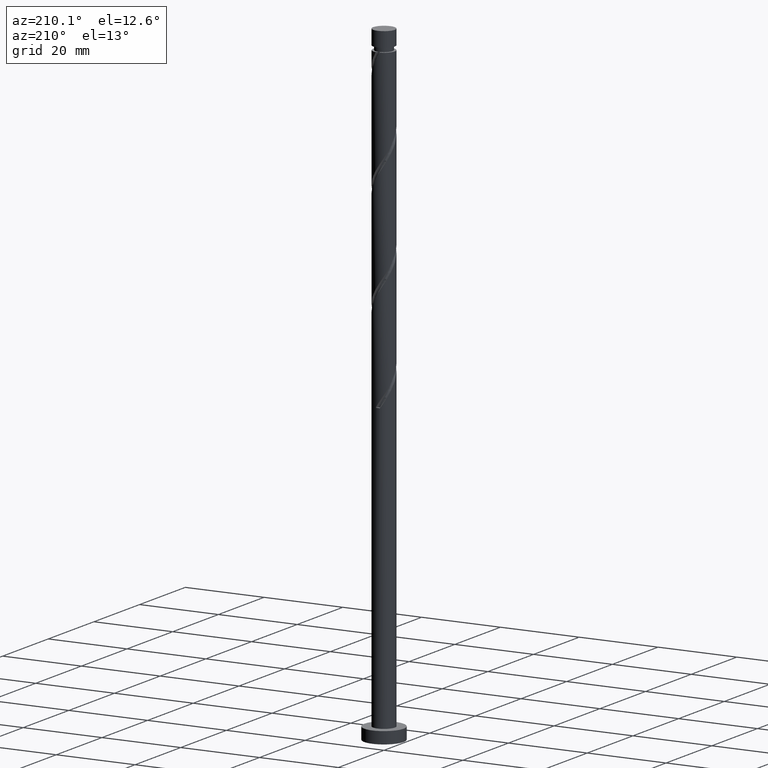
[diagram: clean part render]
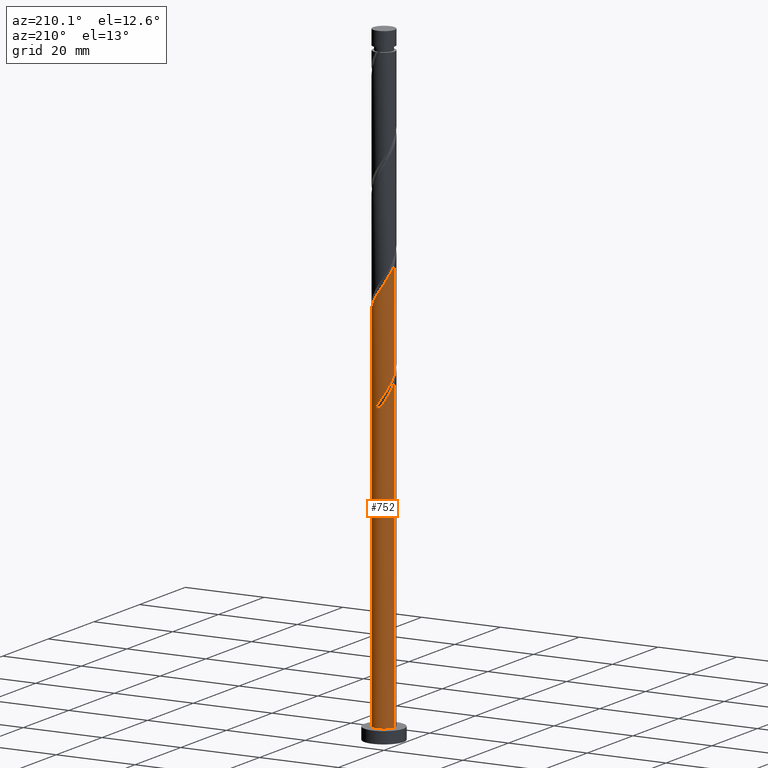
[diagram: same view with one face highlighted and labeled with its STEP entity id]
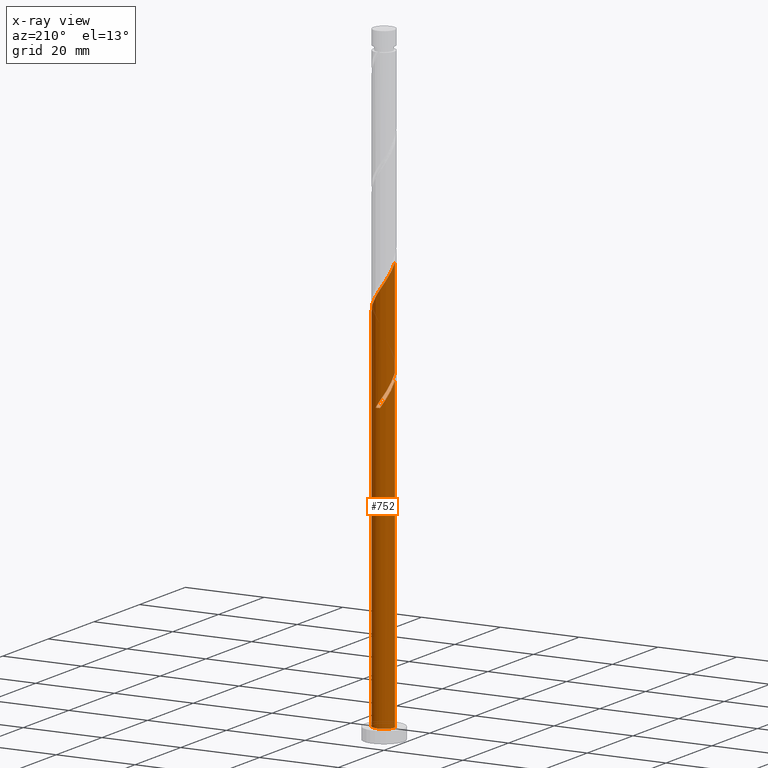
[diagram: x-ray of the same camera — body ghosted, the highlighted face saturated]
A machine part, auxiliary view. The second image highlights one B-rep face of the part: STEP entity #752.
The next image is the same camera in x-ray: the body ghosted, the highlighted face saturated — about 0% of this face is hidden behind the body in this view.
In plain terms, the highlighted cylindrical surface (edge-blend (fillet) strip) has radius 2.75 mm, axis along (-0, -0, -1).
Its self-contained STEP definition (entity closure, byte-faithful):
#4 = CARTESIAN_POINT ( 'NONE',  ( -2.750000000000000000, 0.000000000000000000, 3.000000000000000000 ) ) ;
#58 = CARTESIAN_POINT ( 'NONE',  ( -2.750000000000003997, 0.3149545503090887544, 80.48169176894057841 ) ) ;
#68 =( BOUNDED_CURVE ( )  B_SPLINE_CURVE ( 2, ( #449, #307, #1586, #829, #1325, #1463, #926, #317, #1609, #58, #69 ),
 .UNSPECIFIED., .F., .T. ) 
 B_SPLINE_CURVE_WITH_KNOTS ( ( 3, 2, 2, 2, 2, 3 ),
 ( 0.000000000000000000, 0.01136363636363635354, 0.02272727272727270709, 0.03409090909090906063, 0.04545454545454541417, 0.05452521624175129394 ),
 .UNSPECIFIED. ) 
 CURVE ( )  GEOMETRIC_REPRESENTATION_ITEM ( )  RATIONAL_B_SPLINE_CURVE ( ( 0.9090909090909256030, 0.8998376744372277303, 0.9090909090909256030, 0.8998376744372277303, 0.9090909090909256030, 0.8998376744372277303, 0.9090909090909256030, 0.8998376744372277303, 0.9090909090909256030, 0.9017048011080052161, 0.9061101570135658978 ) ) 
 REPRESENTATION_ITEM ( '' )  );
#69 = CARTESIAN_POINT ( 'NONE',  ( -2.750000000000003553, -1.847167356881795820E-15, 80.96765172191189208 ) ) ;
#74 = FACE_OUTER_BOUND ( 'NONE', #306, .T. ) ;
#115 = CARTESIAN_POINT ( 'NONE',  ( -2.456662652402862523, 1.297552352829637101, 80.60498498909153398 ) ) ;
#124 = VERTEX_POINT ( 'NONE', #334 ) ;
#134 = ORIENTED_EDGE ( 'NONE', *, *, #1218, .T. ) ;
#140 = CARTESIAN_POINT ( 'NONE',  ( 0.5472430904086420522, 2.695000000000000284, 75.15043953454609493 ) ) ;
#171 = CARTESIAN_POINT ( 'NONE',  ( 0.2341933405814793923, 2.740009758965706421, 100.6049849890915624 ) ) ;
#179 = CARTESIAN_POINT ( 'NONE',  ( -2.395113114716218128, 1.351270945337905927, 105.4534698375763924 ) ) ;
#187 = CARTESIAN_POINT ( 'NONE',  ( -0.9347255927250954777, 2.616318322060513069, 102.4231668072734038 ) ) ;
#192 = DIRECTION ( 'NONE',  ( -1.000000000000000000, 0.000000000000000000, 0.000000000000000000 ) ) ;
#194 = CARTESIAN_POINT ( 'NONE',  ( -0.1597605880921877108, 2.773681677939495493, 101.2110455951521715 ) ) ;
#202 = CARTESIAN_POINT ( 'NONE',  ( 2.750000000000004441, 1.705077560198580878E-15, 94.30098505524520647 ) ) ;
#256 = CARTESIAN_POINT ( 'NONE',  ( -2.745449597776791872, 0.1581344556611559704, 82.42316680727336120 ) ) ;
#300 = CARTESIAN_POINT ( 'NONE',  ( -2.200829683470559850, 1.695636222896790279, 104.8474092315158259 ) ) ;
#306 = EDGE_LOOP ( 'NONE', ( #536, #563, #134, #1450, #1313, #1407, #1003, #462 ) ) ;
#307 = CARTESIAN_POINT ( 'NONE',  ( -0.9347255927250954777, 2.616318322060513069, 75.75650014060671822 ) ) ;
#317 = CARTESIAN_POINT ( 'NONE',  ( -2.589396545961877738, 1.006905667779021574, 79.39286377697033004 ) ) ;
#320 = DIRECTION ( 'NONE',  ( -0.000000000000000000, -0.000000000000000000, -1.000000000000000000 ) ) ;
#325 = CARTESIAN_POINT ( 'NONE',  ( 0.9966568199191135902, 2.563040222725492701, 99.39286377697033004 ) ) ;
#332 = CARTESIAN_POINT ( 'NONE',  ( 2.745449597776796313, 0.1581344556611551377, 94.54437892848548586 ) ) ;
#334 = CARTESIAN_POINT ( 'NONE',  ( -2.750000000000000000, 2.587529981704879547E-15, 82.66656068051365480 ) ) ;
#335 = DIRECTION ( 'NONE',  ( -0.000000000000000000, -0.000000000000000000, -1.000000000000000000 ) ) ;
#343 = EDGE_CURVE ( 'NONE', #124, #1578, #1229, .T. ) ;
#350 = CARTESIAN_POINT ( 'NONE',  ( -2.750000000000000000, 0.000000000000000000, 160.0000000000000000 ) ) ;
#360 = AXIS2_PLACEMENT_3D ( 'NONE', #1207, #956, #840 ) ;
#403 = CARTESIAN_POINT ( 'NONE',  ( -0.9966568199191122579, 2.563040222725488704, 77.57468195878850281 ) ) ;
#412 = VERTEX_POINT ( 'NONE', #1007 ) ;
#445 = CARTESIAN_POINT ( 'NONE',  ( 0.000000000000000000, 0.000000000000000000, 160.0000000000000000 ) ) ;
#449 = CARTESIAN_POINT ( 'NONE',  ( -0.5472430904086411640, 2.695000000000003837, 75.15043953454609493 ) ) ;
#454 = LINE ( 'NONE', #350, #583 ) ;
#456 = CARTESIAN_POINT ( 'NONE',  ( -1.917397186166560852, 1.971316319234581060, 104.2413486254551742 ) ) ;
#461 = CARTESIAN_POINT ( 'NONE',  ( -0.5472430904086411640, 2.695000000000003837, 75.15043953454609493 ) ) ;
#462 = ORIENTED_EDGE ( 'NONE', *, *, #1658, .F. ) ;
#465 = CARTESIAN_POINT ( 'NONE',  ( -2.750000000000003553, -1.847167356881795820E-15, 80.96765172191189208 ) ) ;
#502 = AXIS2_PLACEMENT_3D ( 'NONE', #1415, #723, #1587 ) ;
#512 = CARTESIAN_POINT ( 'NONE',  ( -0.2341933405814784763, 2.740009758965701980, 76.36256074666731308 ) ) ;
#536 = ORIENTED_EDGE ( 'NONE', *, *, #1635, .F. ) ;
#540 = CARTESIAN_POINT ( 'NONE',  ( -2.589687973961434686, 0.9252114339541620547, 81.21104559515214305 ) ) ;
#543 = EDGE_CURVE ( 'NONE', #412, #1425, #1075, .T. ) ;
#563 = ORIENTED_EDGE ( 'NONE', *, *, #543, .T. ) ;
#564 = CARTESIAN_POINT ( 'NONE',  ( 1.678377091053239401, 2.178428410627185396, 98.18074256484914031 ) ) ;
#572 = CARTESIAN_POINT ( 'NONE',  ( 0.5472430904086420522, 2.695000000000000284, 75.15043953454609493 ) ) ;
#580 = CARTESIAN_POINT ( 'NONE',  ( -2.750000000000005329, 0.3149545503090818710, 107.1483584356072640 ) ) ;
#583 = VECTOR ( 'NONE', #335, 1000.000000000000000 ) ;
#609 = VERTEX_POINT ( 'NONE', #461 ) ;
#621 = EDGE_CURVE ( 'NONE', #609, #1578, #1597, .T. ) ;
#639 = EDGE_CURVE ( 'NONE', #958, #1273, #454, .T. ) ;
#685 = DIRECTION ( 'NONE',  ( -0.000000000000000000, -0.000000000000000000, -1.000000000000000000 ) ) ;
#694 = CARTESIAN_POINT ( 'NONE',  ( -2.678791222997729093, 0.6217536357676994863, 106.6655910496975963 ) ) ;
#701 = CARTESIAN_POINT ( 'NONE',  ( 2.589687973961440015, 0.9252114339541627208, 95.75650014060671822 ) ) ;
#723 = DIRECTION ( 'NONE',  ( 0.000000000000000000, 0.000000000000000000, 1.000000000000000000 ) ) ;
#726 = VECTOR ( 'NONE', #1341, 1000.000000000000000 ) ;
#752 = ADVANCED_FACE ( 'NONE', ( #74 ), #1595, .T. ) ;
#758 = CARTESIAN_POINT ( 'NONE',  ( -0.6281472692551449688, 2.706337839991914240, 76.96862135272789374 ) ) ;
#766 = CARTESIAN_POINT ( 'NONE',  ( -2.722713295520007737, 0.5528705150786886735, 81.81710620121275213 ) ) ;
#799 = CARTESIAN_POINT ( 'NONE',  ( -2.750000000000003109, -1.847167356881795820E-15, 107.6343183885785351 ) ) ;
#816 = CARTESIAN_POINT ( 'NONE',  ( 1.991587811523398699, 1.937114215795303629, 97.57468195878853123 ) ) ;
#829 = CARTESIAN_POINT ( 'NONE',  ( -1.633964688862562964, 2.246996415572371841, 76.96862135272792216 ) ) ;
#840 = DIRECTION ( 'NONE',  ( -1.000000000000000000, 0.000000000000000000, 0.000000000000000000 ) ) ;
#921 = CARTESIAN_POINT ( 'NONE',  ( -1.633964688862562964, 2.246996415572371841, 103.6352880193946220 ) ) ;
#926 = CARTESIAN_POINT ( 'NONE',  ( -2.395113114716218128, 1.351270945337905927, 78.78680317090972096 ) ) ;
#956 = DIRECTION ( 'NONE',  ( 0.000000000000000000, -0.000000000000000000, -1.000000000000000000 ) ) ;
#958 = VERTEX_POINT ( 'NONE', #465 ) ;
#992 = AXIS2_PLACEMENT_3D ( 'NONE', #445, #320, #192 ) ;
#1000 = CARTESIAN_POINT ( 'NONE',  ( -2.224125231963128613, 1.617333284312469255, 79.99892438303095332 ) ) ;
#1003 = ORIENTED_EDGE ( 'NONE', *, *, #343, .F. ) ;
#1007 = CARTESIAN_POINT ( 'NONE',  ( 2.750000000000004441, 1.705077560198580878E-15, 94.30098505524520647 ) ) ;
#1013 = CARTESIAN_POINT ( 'NONE',  ( -1.365166370583079658, 2.419742605459063611, 78.18074256484915452 ) ) ;
#1049 = CARTESIAN_POINT ( 'NONE',  ( 2.722713295520012178, 0.5528705150786884515, 95.15043953454613757 ) ) ;
#1060 = CARTESIAN_POINT ( 'NONE',  ( -2.589396545961877738, 1.006905667779021574, 106.0595304436370441 ) ) ;
#1070 = CARTESIAN_POINT ( 'NONE',  ( -0.5472430904086412751, 2.695000000000004281, 101.8171062012127663 ) ) ;
#1075 = LINE ( 'NONE', #1601, #726 ) ;
#1076 = CARTESIAN_POINT ( 'NONE',  ( 1.365166370583081434, 2.419742605459066720, 98.78680317090974938 ) ) ;
#1082 = CARTESIAN_POINT ( 'NONE',  ( 0.6281472692551467452, 2.706337839991918237, 99.99892438303096753 ) ) ;
#1107 = CARTESIAN_POINT ( 'NONE',  ( -2.750000000000003553, -1.847167356881795820E-15, 107.6343183885785351 ) ) ;
#1127 = CARTESIAN_POINT ( 'NONE',  ( -1.991587811523394480, 1.937114215795302519, 79.39286377697033004 ) ) ;
#1144 = CARTESIAN_POINT ( 'NONE',  ( -2.750000000000000000, 2.587529981704879547E-15, 82.66656068051365480 ) ) ;
#1181 = CARTESIAN_POINT ( 'NONE',  ( 2.456662652402867408, 1.297552352829637323, 96.36256074666735572 ) ) ;
#1188 = CARTESIAN_POINT ( 'NONE',  ( 2.750000000000003109, 0.07913269794051239203, 94.42308305996341744 ) ) ;
#1194 = LINE ( 'NONE', #1579, #1600 ) ;
#1202 = CARTESIAN_POINT ( 'NONE',  ( -1.284345140793828666, 2.431657368816442233, 103.0292274133339987 ) ) ;
#1207 = CARTESIAN_POINT ( 'NONE',  ( 0.000000000000000000, 0.000000000000000000, 75.15043953454609493 ) ) ;
#1218 = EDGE_CURVE ( 'NONE', #1425, #1273, #1350, .T. ) ;
#1229 =( BOUNDED_CURVE ( )  B_SPLINE_CURVE ( 2, ( #1144, #1270, #256, #766, #540, #115, #1000, #1127, #1528, #1013, #403, #758, #512, #1284, #140 ),
 .UNSPECIFIED., .F., .T. ) 
 B_SPLINE_CURVE_WITH_KNOTS ( ( 3, 2, 2, 2, 2, 2, 2, 3 ),
 ( 0.9295252162417512176, 0.9318181818181817677, 0.9431818181818182323, 0.9545454545454545858, 0.9659090909090909394, 0.9772727272727272929, 0.9886363636363636465, 1.000000000000000000 ),
 .UNSPECIFIED. ) 
 CURVE ( )  GEOMETRIC_REPRESENTATION_ITEM ( )  RATIONAL_B_SPLINE_CURVE ( ( 0.9061101570135604577, 0.9072237824201425660, 0.9090909090909201629, 0.8998376744372224012, 0.9090909090909201629, 0.8998376744372224012, 0.9090909090909201629, 0.8998376744372224012, 0.9090909090909201629, 0.8998376744372224012, 0.9090909090909201629, 0.8998376744372224012, 0.9090909090909201629, 0.8998376744372224012, 0.9090909090909201629 ) ) 
 REPRESENTATION_ITEM ( '' )  );
#1270 = CARTESIAN_POINT ( 'NONE',  ( -2.750000000000000444, 0.07913269794050940831, 82.54446267579544383 ) ) ;
#1273 = VERTEX_POINT ( 'NONE', #4 ) ;
#1282 =( BOUNDED_CURVE ( )  B_SPLINE_CURVE ( 2, ( #202, #1188, #332, #1049, #701, #1181, #1572, #816, #564, #1076, #325, #1082, #171, #194, #1070, #187, #1202, #921, #456, #300, #179, #1060, #694, #580, #799 ),
 .UNSPECIFIED., .F., .T. ) 
 B_SPLINE_CURVE_WITH_KNOTS ( ( 3, 2, 2, 2, 2, 2, 2, 2, 2, 2, 2, 2, 3 ),
 ( 0.1795252162417513286, 0.1818181818181817677, 0.1931818181818182323, 0.2045454545454545858, 0.2159090909090909394, 0.2272727272727272929, 0.2386363636363636465, 0.2500000000000000000, 0.2613636363636363535, 0.2727272727272727071, 0.2840909090909090606, 0.2954545454545454142, 0.3045252162417514952 ),
 .UNSPECIFIED. ) 
 CURVE ( )  GEOMETRIC_REPRESENTATION_ITEM ( )  RATIONAL_B_SPLINE_CURVE ( ( 0.9061101570135658978, 0.9072237824201481171, 0.9090909090909256030, 0.8998376744372277303, 0.9090909090909256030, 0.8998376744372277303, 0.9090909090909256030, 0.8998376744372277303, 0.9090909090909256030, 0.8998376744372277303, 0.9090909090909256030, 0.8998376744372277303, 0.9090909090909256030, 0.8998376744372277303, 0.9090909090909256030, 0.8998376744372277303, 0.9090909090909256030, 0.8998376744372277303, 0.9090909090909256030, 0.8998376744372277303, 0.9090909090909256030, 0.8998376744372277303, 0.9090909090909256030, 0.9017048011080051051, 0.9061101570135661198 ) ) 
 REPRESENTATION_ITEM ( '' )  );
#1284 = CARTESIAN_POINT ( 'NONE',  ( 0.1597605880921882382, 2.773681677939491053, 75.75650014060671822 ) ) ;
#1313 = ORIENTED_EDGE ( 'NONE', *, *, #1608, .F. ) ;
#1325 = CARTESIAN_POINT ( 'NONE',  ( -1.917397186166560852, 1.971316319234581060, 77.57468195878851702 ) ) ;
#1341 = DIRECTION ( 'NONE',  ( -0.000000000000000000, -0.000000000000000000, -1.000000000000000000 ) ) ;
#1350 = CIRCLE ( 'NONE', #502, 2.750000000000000000 ) ;
#1407 = ORIENTED_EDGE ( 'NONE', *, *, #621, .T. ) ;
#1415 = CARTESIAN_POINT ( 'NONE',  ( 0.000000000000000000, 0.000000000000000000, 3.000000000000000000 ) ) ;
#1425 = VERTEX_POINT ( 'NONE', #1514 ) ;
#1450 = ORIENTED_EDGE ( 'NONE', *, *, #639, .F. ) ;
#1463 = CARTESIAN_POINT ( 'NONE',  ( -2.200829683470559850, 1.695636222896790279, 78.18074256484914031 ) ) ;
#1488 = VERTEX_POINT ( 'NONE', #1107 ) ;
#1514 = CARTESIAN_POINT ( 'NONE',  ( 2.750000000000000000, 3.367778697655221012E-16, 3.000000000000000000 ) ) ;
#1528 = CARTESIAN_POINT ( 'NONE',  ( -1.678377091053236958, 2.178428410627182288, 78.78680317090973517 ) ) ;
#1572 = CARTESIAN_POINT ( 'NONE',  ( 2.224125231963132610, 1.617333284312470365, 96.96862135272789374 ) ) ;
#1578 = VERTEX_POINT ( 'NONE', #572 ) ;
#1579 = CARTESIAN_POINT ( 'NONE',  ( -2.750000000000000000, 0.000000000000000000, 160.0000000000000000 ) ) ;
#1586 = CARTESIAN_POINT ( 'NONE',  ( -1.284345140793828666, 2.431657368816442233, 76.36256074666731308 ) ) ;
#1587 = DIRECTION ( 'NONE',  ( 1.000000000000000000, 0.000000000000000000, 0.000000000000000000 ) ) ;
#1595 = CYLINDRICAL_SURFACE ( 'NONE', #992, 2.750000000000000000 ) ;
#1597 = CIRCLE ( 'NONE', #360, 2.750000000000000000 ) ;
#1600 = VECTOR ( 'NONE', #685, 1000.000000000000000 ) ;
#1601 = CARTESIAN_POINT ( 'NONE',  ( 2.750000000000000000, 3.367778697655221012E-16, 160.0000000000000000 ) ) ;
#1608 = EDGE_CURVE ( 'NONE', #609, #958, #68, .T. ) ;
#1609 = CARTESIAN_POINT ( 'NONE',  ( -2.678791222997729093, 0.6217536357676994863, 79.99892438303095332 ) ) ;
#1635 = EDGE_CURVE ( 'NONE', #412, #1488, #1282, .T. ) ;
#1658 = EDGE_CURVE ( 'NONE', #1488, #124, #1194, .T. ) ;